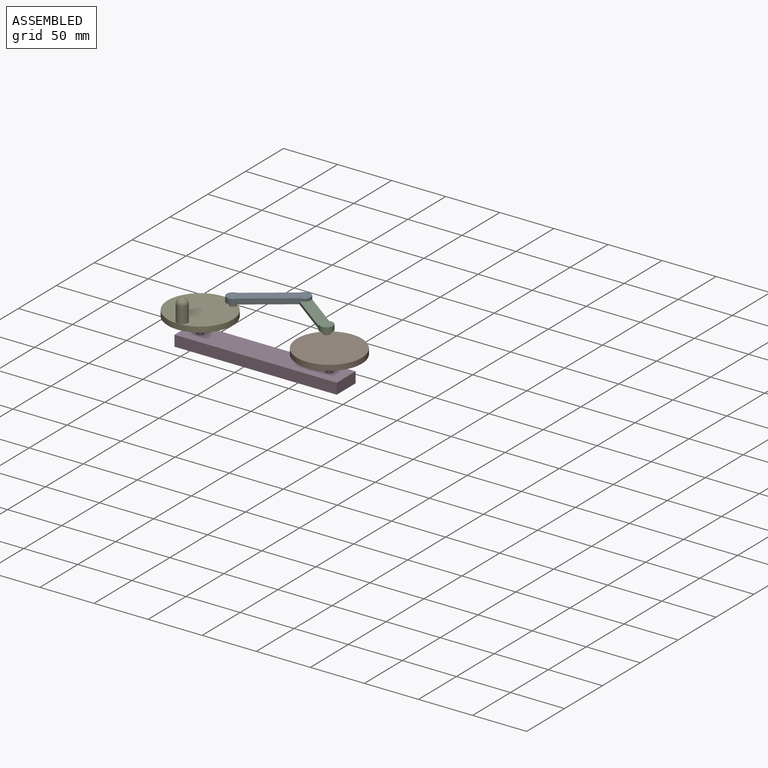
[diagram: assembled view]
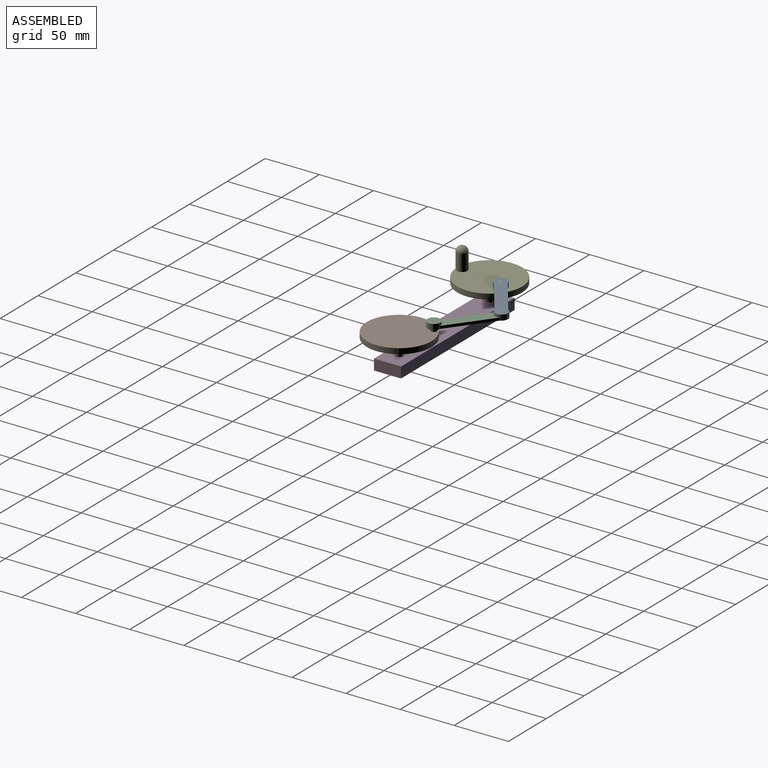
[diagram: assembled view, second angle]
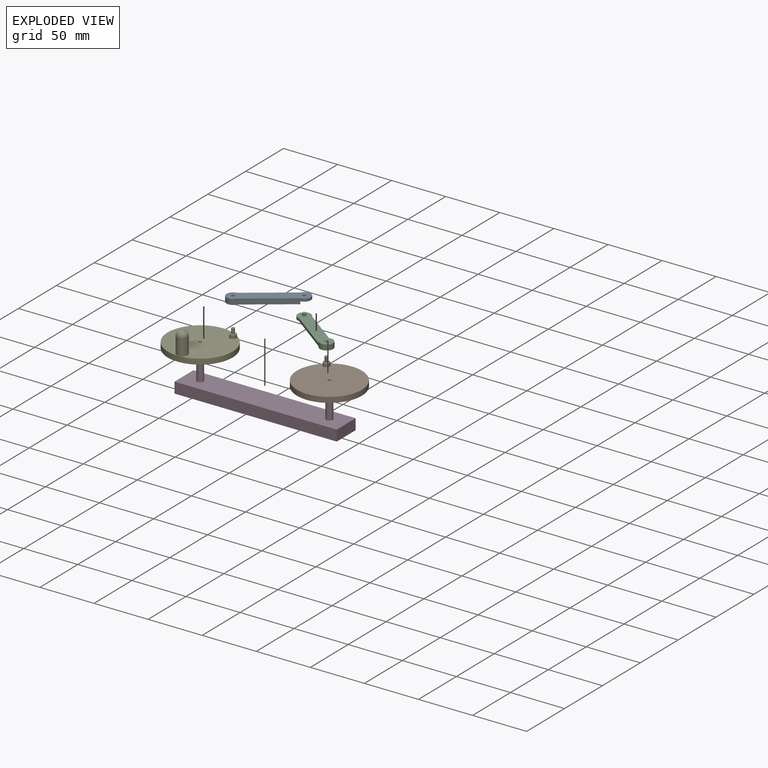
[diagram: exploded view]
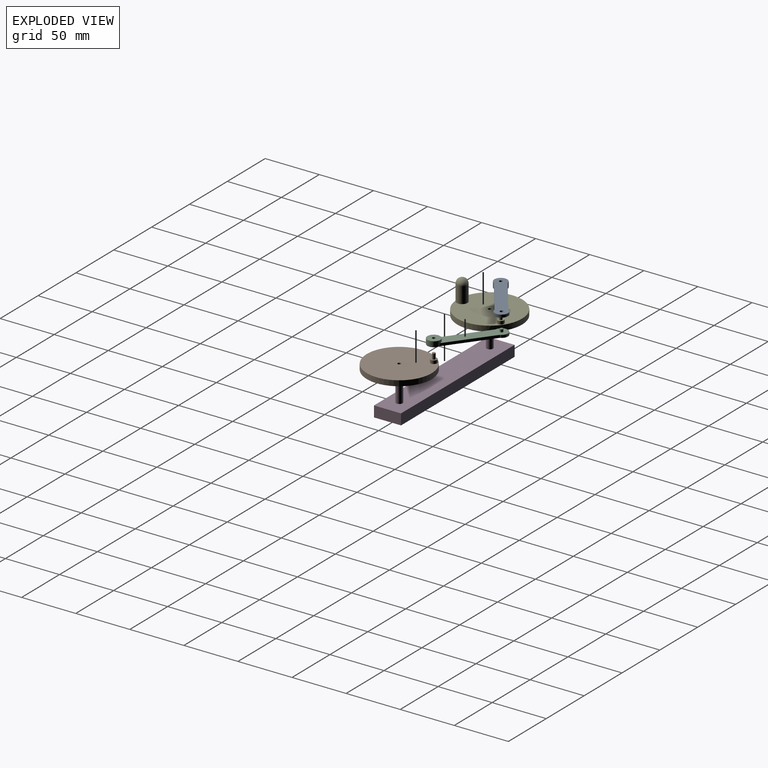
[diagram: exploded view, second angle]
ASSEMBLY  parts=5 mates=5
PART A: 11 faces, bbox 55.5x43.9x5 mm
  f0: plane 50.13x39.82mm, normal (0,0,-1), area 556.8mm2, adj f1,f2,f4,f5,f6,f10
  f1: plane 2.5x0.16mm, normal (0.81,0.59,0), area 0.5mm2, adj f0,f6,f8,f10
  f2: cylinder r=6mm len=11.96mm, axis (0,0,-1), area 125.7mm2, adj f0,f3,f5,f6
  f3: plane 55.47x43.94mm, normal (0,0,1), area 666.1mm2, adj f2,f4,f5,f6,f7,f9
  f4: cylinder r=1.5mm len=5mm, axis (0,0,1), area 47.1mm2, adj f0,f3
  f5: plane 38.63x28.39mm, normal (-0.59,0.81,0), area 237.5mm2, adj f0,f2,f3,f7,f8,f10
  f6: plane 38.63x28.39mm, normal (0.59,-0.81,0), area 239.7mm2, adj f0,f1,f2,f3,f7
  f7: cylinder r=6mm len=11.96mm, axis (0,0,1), area 62.8mm2, adj f3,f5,f6,f8
  f8: plane 12.49x11.96mm, normal (0,0,-1), area 109.2mm2, adj f1,f5,f7,f9,f10
  f9: cylinder r=1.5mm len=3mm, axis (0,0,1), area 23.6mm2, adj f3,f8
  f10: cylinder r=6mm len=7.77mm, axis (0,0,-1), area 30.6mm2, adj f0,f1,f5,f8
PART B: 8 faces, bbox 60x60x13 mm
  f0: cylinder r=30mm len=60mm, axis (0,0,-1), area 942.5mm2, adj f1,f2
  f1: plane 60x60mm, normal (0,0,1), area 2792.1mm2, adj f0,f3,f4
  f2: plane 60x60mm, normal (0,0,-1), area 2820.4mm2, adj f0,f3
  f3: cylinder r=1.5mm len=5mm, axis (0,0,1), area 47.1mm2, adj f1,f2
  f4: cylinder r=3mm len=6mm, axis (0,0,-1), area 56.5mm2, adj f1,f5
  f5: plane 6x6mm, normal (0,0,1), area 21.2mm2, adj f4,f6
  f6: cylinder r=1.5mm len=5mm, axis (0,0,-1), area 47.1mm2, adj f5,f7
  f7: plane 3x3mm, normal (0,0,1), area 7.1mm2, adj f6
PART C: 10 faces, bbox 55.5x43.9x5 mm
  f0: cylinder r=6mm len=12mm, axis (0,0,-1), area 157.1mm2, adj f1,f2,f4,f5,f6
  f1: plane 12x12mm, normal (0,0,1), area 106mm2, adj f0,f3
  f2: plane 55.47x43.94mm, normal (0,0,-1), area 673.2mm2, adj f0,f3,f4,f5,f7
  f3: cylinder r=1.5mm len=5mm, axis (0,0,1), area 47.1mm2, adj f1,f2
  f4: plane 38.63x28.39mm, normal (0.59,0.81,0), area 119.9mm2, adj f0,f2,f6,f7
  f5: plane 38.63x28.39mm, normal (-0.59,-0.81,0), area 119.9mm2, adj f0,f2,f6,f7
  f6: plane 50.13x40.35mm, normal (0,0,1), area 560.1mm2, adj f0,f4,f5,f7,f8
  f7: cylinder r=6mm len=11.96mm, axis (0,0,-1), area 62.8mm2, adj f2,f4,f5,f6
  f8: cylinder r=1.5mm len=3mm, axis (0,0,-1), area 23.6mm2, adj f6,f9
  f9: plane 3x3mm, normal (0,0,1), area 7.1mm2, adj f8
PART D: 14 faces, bbox 150x25x30 mm
  f0: plane 25x10mm, normal (-1,0,0), area 250mm2, adj f1,f3,f4,f5
  f1: plane 150x10mm, normal (0,-1,0), area 1500mm2, adj f0,f2,f4,f5
  f2: plane 25x10mm, normal (1,0,0), area 250mm2, adj f1,f3,f4,f5
  f3: plane 150x10mm, normal (0,1,0), area 1500mm2, adj f0,f2,f4,f5
  f4: plane 150x25mm, normal (0,0,1), area 3693.5mm2, adj f0,f1,f2,f3,f6,f8
  f5: plane 150x25mm, normal (0,0,-1), area 3750mm2, adj f0,f1,f2,f3
  f6: cylinder r=3mm len=15mm, axis (0,0,-1), area 282.7mm2, adj f4,f7
  f7: plane 6x6mm, normal (0,0,1), area 21.2mm2, adj f6,f10
  f8: cylinder r=3mm len=15mm, axis (0,0,-1), area 282.7mm2, adj f4,f9
  f9: plane 6x6mm, normal (0,0,1), area 21.2mm2, adj f8,f12
  f10: cylinder r=1.5mm len=5mm, axis (0,0,-1), area 47.1mm2, adj f7,f11
  f11: plane 3x3mm, normal (0,0,1), area 7.1mm2, adj f10
  f12: cylinder r=1.5mm len=5mm, axis (0,0,-1), area 47.1mm2, adj f9,f13
  f13: plane 3x3mm, normal (0,0,1), area 7.1mm2, adj f12
PART E: 10 faces, bbox 60x60x25 mm
  f0: cylinder r=30mm len=60mm, axis (0,0,-1), area 942.5mm2, adj f1,f2
  f1: plane 60x60mm, normal (0,0,1), area 2713.6mm2, adj f0,f3,f4,f6
  f2: plane 60x60mm, normal (0,0,-1), area 2820.4mm2, adj f0,f4
  f3: cylinder r=5mm len=15mm, axis (0,0,-1), area 471.2mm2, adj f1,f5
  f4: cylinder r=1.5mm len=5mm, axis (0,0,1), area 47.1mm2, adj f1,f2
  f5: sphere r=5mm, area 157.1mm2, adj f3
  f6: cylinder r=3mm len=6mm, axis (0,0,-1), area 56.5mm2, adj f1,f7
  f7: plane 6x6mm, normal (0,0,1), area 21.2mm2, adj f6,f8
  f8: cylinder r=1.5mm len=5mm, axis (0,0,-1), area 47.1mm2, adj f7,f9
  f9: plane 3x3mm, normal (0,0,1), area 7.1mm2, adj f8
PLACE A rot(axis=(0,0,-1),0.8deg) t=(-287.99,104.54,28.27)mm
PLACE B rot(axis=(0,0,1),1.5deg) t=(-287.2,103.05,28.27)mm
PLACE C rot(axis=(0,0,-1),0.5deg) t=(-287.76,104.54,28.27)mm
PLACE D t=(-287.1,104.6,28.27)mm fixed
PLACE E rot(axis=(0,0,1),1.8deg) t=(-287.28,106.52,28.27)mm
MATE revolute E.f6 <-> A.f2  axis (0,0,1) through (-331.24,121.04,61.27)mm
MATE revolute B.f0 <-> D.f8  axis (0,0,-1) through (-227.37,99.91,53.27)mm
MATE revolute C.f7 <-> A.f7  axis (0,0,1) through (-287.35,152.4,63.77)mm
MATE revolute B.f4 <-> C.f0  axis (0,0,1) through (-244.16,120.09,61.27)mm
MATE revolute D.f6 <-> E.f0  axis (0,0,1) through (-346.82,99.91,53.27)mm
